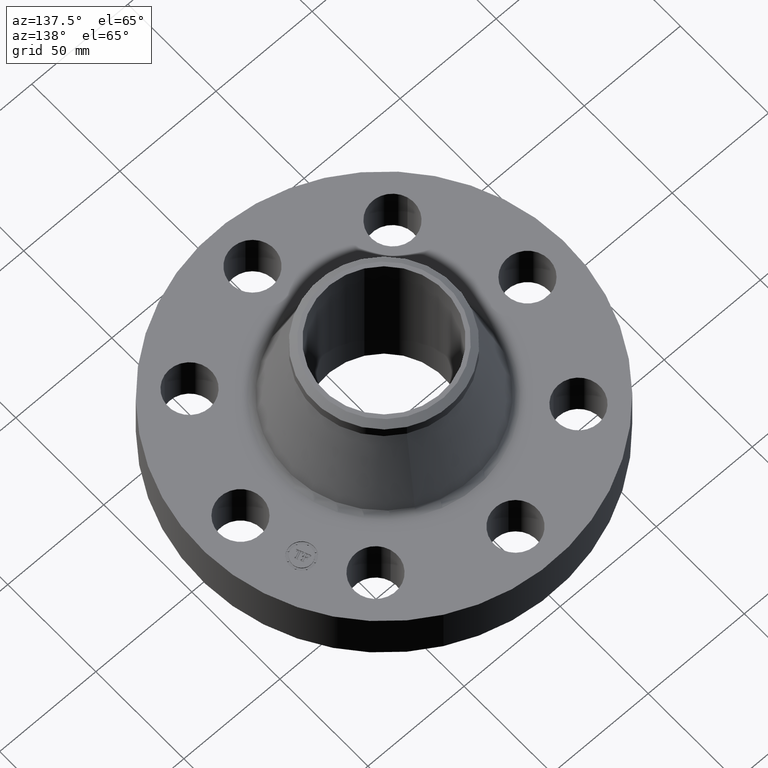
[diagram: clean part render]
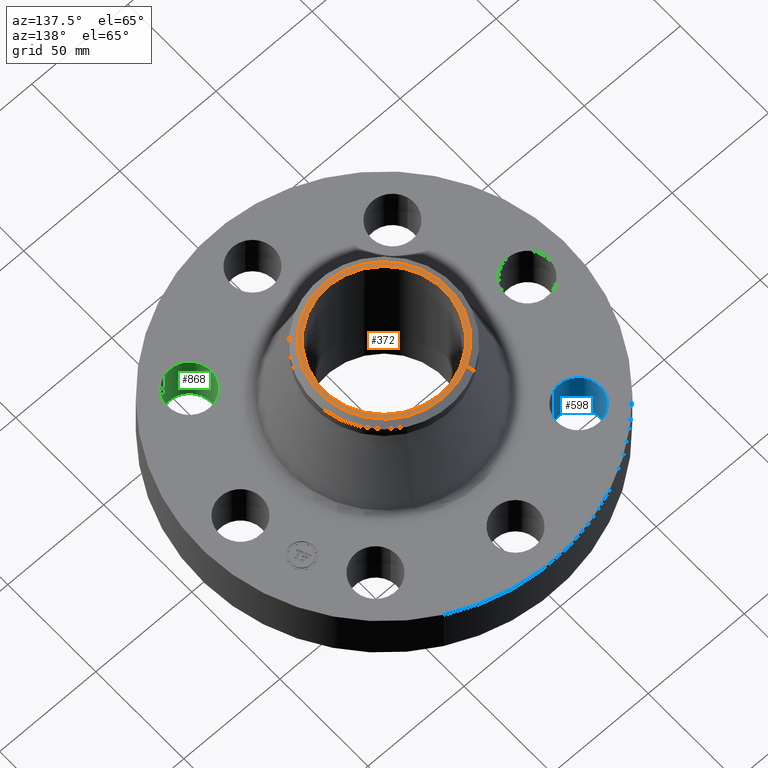
[diagram: same view with three faces highlighted in distinct colors, each labeled with its STEP entity id]
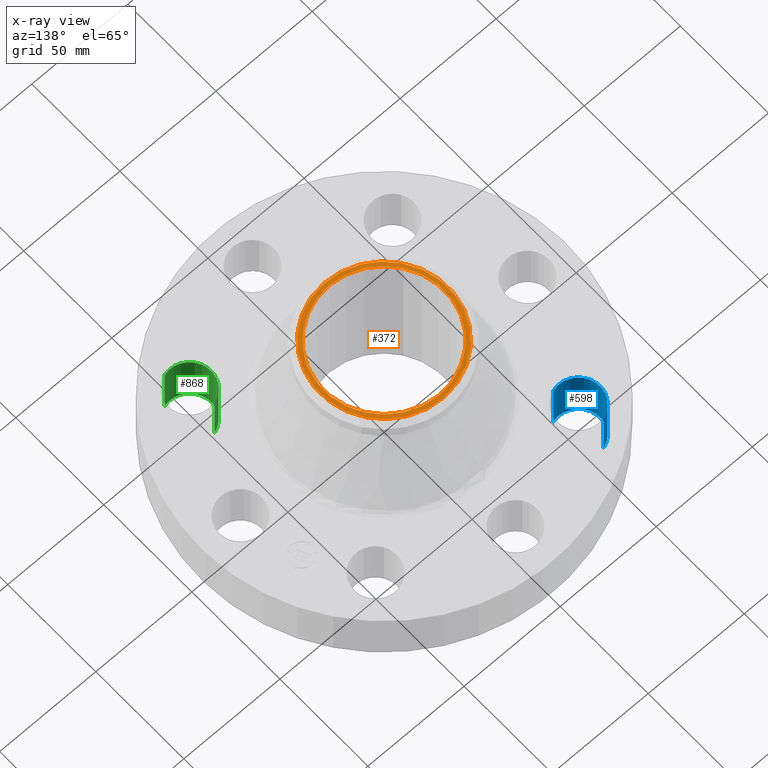
[diagram: x-ray of the same camera — body ghosted, the three highlighted faces saturated]
A machine part, auxiliary view with three faces highlighted in distinct colors.
The next image is the same camera in x-ray (body ghosted, the three faces saturated) — at least one of them is partly hidden behind the body in this view.
Their STEP definitions:

[orange] entity #372 — the highlighted planar face has unit normal (0, 0, -1).
#322=AXIS2_PLACEMENT_3D('Circle Axis2P3D',#320,#321,$) ;
#343=AXIS2_PLACEMENT_3D('Plane Axis2P3D',#340,#341,#342) ;
#347=AXIS2_PLACEMENT_3D('Circle Axis2P3D',#345,#346,$) ;
#356=AXIS2_PLACEMENT_3D('Circle Axis2P3D',#354,#355,$) ;
#365=AXIS2_PLACEMENT_3D('Circle Axis2P3D',#363,#364,$) ;
#317=CARTESIAN_POINT('Vertex',(0.629600869819,-1.15247666178,3.12000000001)) ;
#320=CARTESIAN_POINT('Axis2P3D Location',(0.,0.,3.12000000001)) ;
#324=CARTESIAN_POINT('Vertex',(-0.629600869819,1.15247666178,3.12000000001)) ;
#340=CARTESIAN_POINT('Axis2P3D Location',(0.,1.44000000001,3.12000000001)) ;
#345=CARTESIAN_POINT('Axis2P3D Location',(0.,0.,3.12000000001)) ;
#354=CARTESIAN_POINT('Axis2P3D Location',(0.,0.,3.12000000001)) ;
#358=CARTESIAN_POINT('Vertex',(-0.591850827409,-1.08337567266,3.12000000001)) ;
#360=CARTESIAN_POINT('Vertex',(0.591850827409,1.08337567266,3.12000000001)) ;
#363=CARTESIAN_POINT('Axis2P3D Location',(0.,0.,3.12000000001)) ;
#321=DIRECTION('Axis2P3D Direction',(0.,0.,-0.0393700787402)) ;
#341=DIRECTION('Axis2P3D Direction',(0.,0.,-0.0393700787402)) ;
#342=DIRECTION('Axis2P3D XDirection',(0.0393700787402,0.,0.)) ;
#346=DIRECTION('Axis2P3D Direction',(0.,0.,-0.0393700787402)) ;
#355=DIRECTION('Axis2P3D Direction',(0.,0.,-0.0393700787402)) ;
#364=DIRECTION('Axis2P3D Direction',(0.,0.,-0.0393700787402)) ;
#351=ORIENTED_EDGE('',*,*,#349,.T.) ;
#352=ORIENTED_EDGE('',*,*,#326,.T.) ;
#369=ORIENTED_EDGE('',*,*,#362,.T.) ;
#370=ORIENTED_EDGE('',*,*,#367,.T.) ;
#371=FACE_BOUND('',#368,.T.) ;
#372=ADVANCED_FACE('PartBody',(#353,#371),#344,.F.) ;
#323=CIRCLE('generated circle',#322,1.31324015749) ;
#348=CIRCLE('generated circle',#347,1.31324015749) ;
#357=CIRCLE('generated circle',#356,1.2345) ;
#366=CIRCLE('generated circle',#365,1.2345) ;
#326=EDGE_CURVE('',#325,#318,#323,.F.) ;
#349=EDGE_CURVE('',#318,#325,#348,.F.) ;
#362=EDGE_CURVE('',#359,#361,#357,.T.) ;
#367=EDGE_CURVE('',#361,#359,#366,.T.) ;
#350=EDGE_LOOP('',(#351,#352)) ;
#368=EDGE_LOOP('',(#369,#370)) ;
#353=FACE_OUTER_BOUND('',#350,.T.) ;
#344=PLANE('',#343) ;
#318=VERTEX_POINT('',#317) ;
#325=VERTEX_POINT('',#324) ;
#359=VERTEX_POINT('',#358) ;
#361=VERTEX_POINT('',#360) ;

[blue] entity #598 — the highlighted cylindrical surface (edge-blend (fillet) strip) has radius 11.176 mm, axis along (0, 0, -1).
#515=AXIS2_PLACEMENT_3D('Circle Axis2P3D',#513,#514,$) ;
#571=AXIS2_PLACEMENT_3D('Cylinder Axis2P3D',#568,#569,#570) ;
#589=AXIS2_PLACEMENT_3D('Circle Axis2P3D',#587,#588,$) ;
#513=CARTESIAN_POINT('Axis2P3D Location',(-2.0788939367,2.0788939367,0.)) ;
#517=CARTESIAN_POINT('Vertex',(-1.95501654299,1.6566920995,0.)) ;
#519=CARTESIAN_POINT('Vertex',(-2.2027713304,2.50109577389,0.)) ;
#568=CARTESIAN_POINT('Axis2P3D Location',(-2.0788939367,2.0788939367,1.11606299213)) ;
#573=CARTESIAN_POINT('Line Origine',(-1.95501654299,1.6566920995,0.560000000002)) ;
#577=CARTESIAN_POINT('Vertex',(-1.95501654299,1.6566920995,1.12)) ;
#580=CARTESIAN_POINT('Line Origine',(-2.2027713304,2.50109577389,0.560000000002)) ;
#584=CARTESIAN_POINT('Vertex',(-2.2027713304,2.50109577389,1.12)) ;
#587=CARTESIAN_POINT('Axis2P3D Location',(-2.0788939367,2.0788939367,1.12)) ;
#514=DIRECTION('Axis2P3D Direction',(0.,0.,-0.0393700787402)) ;
#569=DIRECTION('Axis2P3D Direction',(0.,0.,-0.0393700787402)) ;
#570=DIRECTION('Axis2P3D XDirection',(-0.0110842335096,0.0377775444876,0.)) ;
#574=DIRECTION('Vector Direction',(0.,0.,-0.0393700787402)) ;
#581=DIRECTION('Vector Direction',(0.,0.,-0.0393700787402)) ;
#588=DIRECTION('Axis2P3D Direction',(0.,0.,-0.0393700787402)) ;
#575=VECTOR('Line Direction',#574,0.0393700787402) ;
#582=VECTOR('Line Direction',#581,0.0393700787402) ;
#593=ORIENTED_EDGE('',*,*,#579,.F.) ;
#594=ORIENTED_EDGE('',*,*,#521,.T.) ;
#595=ORIENTED_EDGE('',*,*,#586,.T.) ;
#596=ORIENTED_EDGE('',*,*,#591,.F.) ;
#598=ADVANCED_FACE('PartBody',(#597),#572,.F.) ;
#516=CIRCLE('generated circle',#515,0.440000000002) ;
#590=CIRCLE('generated circle',#589,0.440000000002) ;
#572=CYLINDRICAL_SURFACE('generated cylinder',#571,0.440000000002) ;
#521=EDGE_CURVE('',#518,#520,#516,.T.) ;
#579=EDGE_CURVE('',#518,#578,#576,.F.) ;
#586=EDGE_CURVE('',#520,#585,#583,.F.) ;
#591=EDGE_CURVE('',#578,#585,#590,.T.) ;
#592=EDGE_LOOP('',(#593,#594,#595,#596)) ;
#597=FACE_OUTER_BOUND('',#592,.T.) ;
#576=LINE('Line',#573,#575) ;
#583=LINE('Line',#580,#582) ;
#518=VERTEX_POINT('',#517) ;
#520=VERTEX_POINT('',#519) ;
#578=VERTEX_POINT('',#577) ;
#585=VERTEX_POINT('',#584) ;

[green] entity #868 — the highlighted cylindrical surface (edge-blend (fillet) strip) has radius 11.176 mm, axis along (0, -0, -1).
#452=AXIS2_PLACEMENT_3D('Circle Axis2P3D',#450,#451,$) ;
#829=AXIS2_PLACEMENT_3D('Cylinder Axis2P3D',#826,#827,#828) ;
#859=AXIS2_PLACEMENT_3D('Circle Axis2P3D',#857,#858,$) ;
#445=CARTESIAN_POINT('Vertex',(1.95501654299,-1.6566920995,0.)) ;
#447=CARTESIAN_POINT('Vertex',(2.2027713304,-2.50109577389,0.)) ;
#450=CARTESIAN_POINT('Axis2P3D Location',(2.0788939367,-2.0788939367,0.)) ;
#826=CARTESIAN_POINT('Axis2P3D Location',(2.0788939367,-2.0788939367,1.11606299213)) ;
#831=CARTESIAN_POINT('Line Origine',(1.95501654299,-1.6566920995,0.560000000002)) ;
#835=CARTESIAN_POINT('Vertex',(1.95501654299,-1.6566920995,1.12)) ;
#838=CARTESIAN_POINT('Line Origine',(2.2027713304,-2.50109577389,0.560000000002)) ;
#842=CARTESIAN_POINT('Vertex',(2.2027713304,-2.50109577389,1.12)) ;
#857=CARTESIAN_POINT('Axis2P3D Location',(2.0788939367,-2.0788939367,1.12)) ;
#451=DIRECTION('Axis2P3D Direction',(0.,0.,-0.0393700787402)) ;
#827=DIRECTION('Axis2P3D Direction',(0.,-0.,-0.0393700787402)) ;
#828=DIRECTION('Axis2P3D XDirection',(0.0110842335096,-0.0377775444876,0.)) ;
#832=DIRECTION('Vector Direction',(0.,0.,-0.0393700787402)) ;
#839=DIRECTION('Vector Direction',(0.,0.,-0.0393700787402)) ;
#858=DIRECTION('Axis2P3D Direction',(0.,-0.,-0.0393700787402)) ;
#833=VECTOR('Line Direction',#832,0.0393700787402) ;
#840=VECTOR('Line Direction',#839,0.0393700787402) ;
#863=ORIENTED_EDGE('',*,*,#844,.F.) ;
#864=ORIENTED_EDGE('',*,*,#454,.T.) ;
#865=ORIENTED_EDGE('',*,*,#837,.T.) ;
#866=ORIENTED_EDGE('',*,*,#861,.F.) ;
#868=ADVANCED_FACE('PartBody',(#867),#830,.F.) ;
#453=CIRCLE('generated circle',#452,0.440000000002) ;
#860=CIRCLE('generated circle',#859,0.440000000002) ;
#830=CYLINDRICAL_SURFACE('generated cylinder',#829,0.440000000002) ;
#454=EDGE_CURVE('',#448,#446,#453,.T.) ;
#837=EDGE_CURVE('',#446,#836,#834,.F.) ;
#844=EDGE_CURVE('',#448,#843,#841,.F.) ;
#861=EDGE_CURVE('',#843,#836,#860,.T.) ;
#862=EDGE_LOOP('',(#863,#864,#865,#866)) ;
#867=FACE_OUTER_BOUND('',#862,.T.) ;
#834=LINE('Line',#831,#833) ;
#841=LINE('Line',#838,#840) ;
#446=VERTEX_POINT('',#445) ;
#448=VERTEX_POINT('',#447) ;
#836=VERTEX_POINT('',#835) ;
#843=VERTEX_POINT('',#842) ;